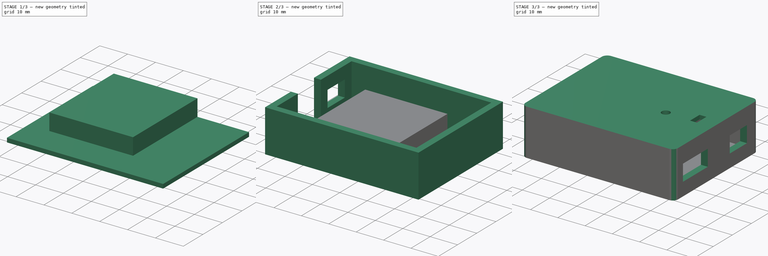
[diagram: build sequence overview — one tinted view per stage of 3, left to right]
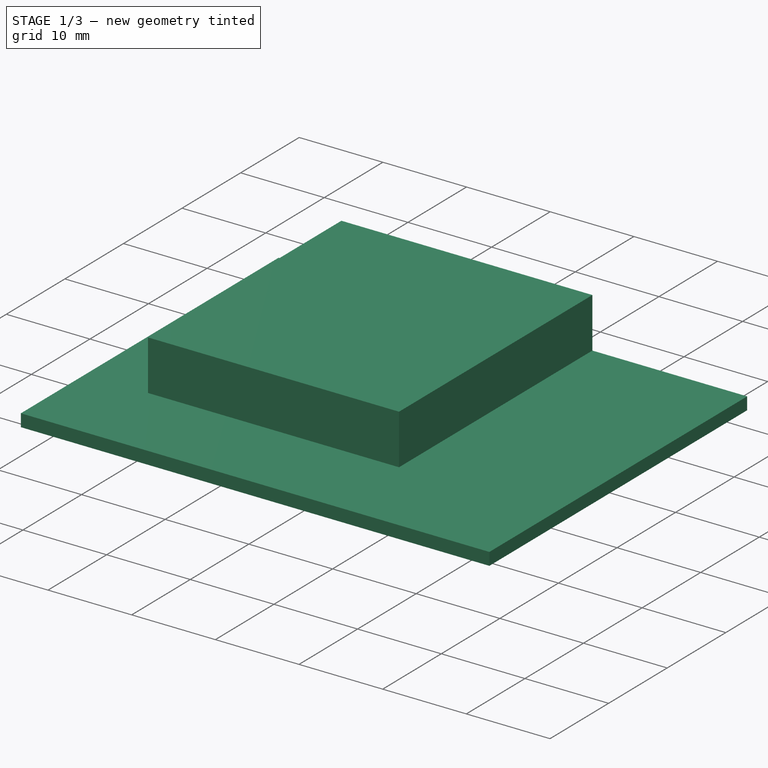
[diagram: stage 1 of 3 — iso view after this stage's code; geometry added in this stage tinted green]
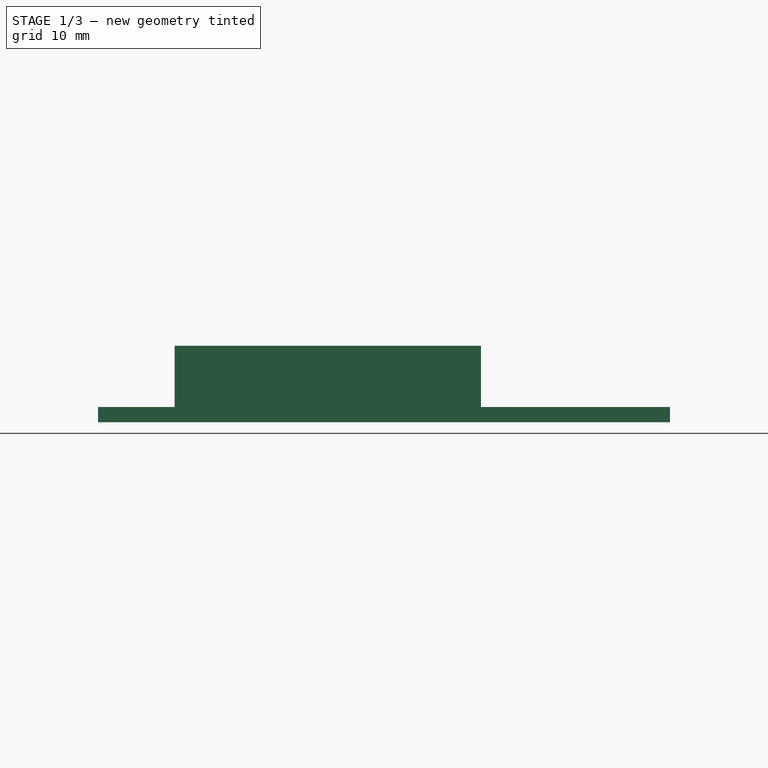
[diagram: stage 1 of 3 — front view after this stage's code; geometry added in this stage tinted green]
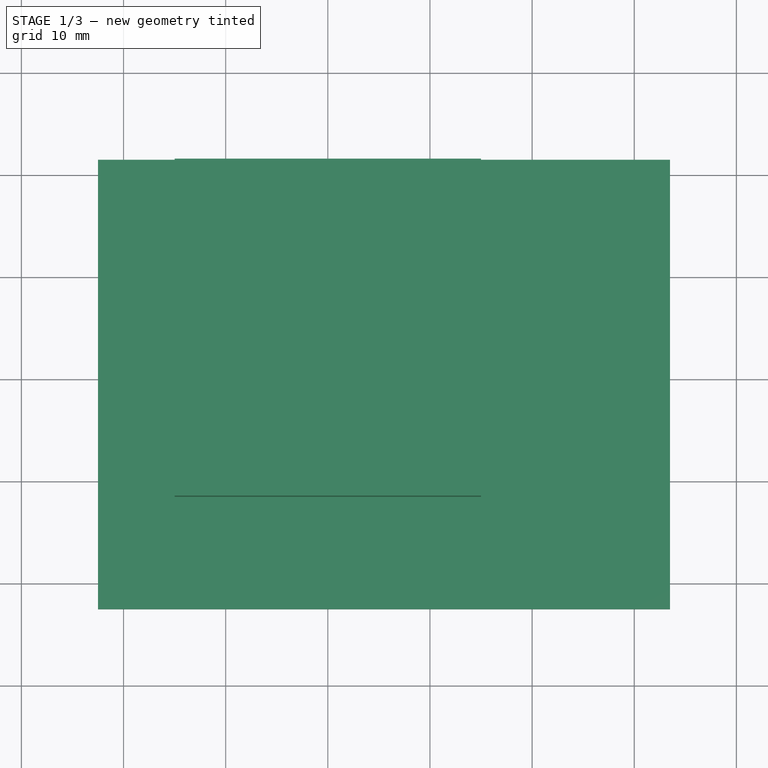
[diagram: stage 1 of 3 — top view after this stage's code; geometry added in this stage tinted green]
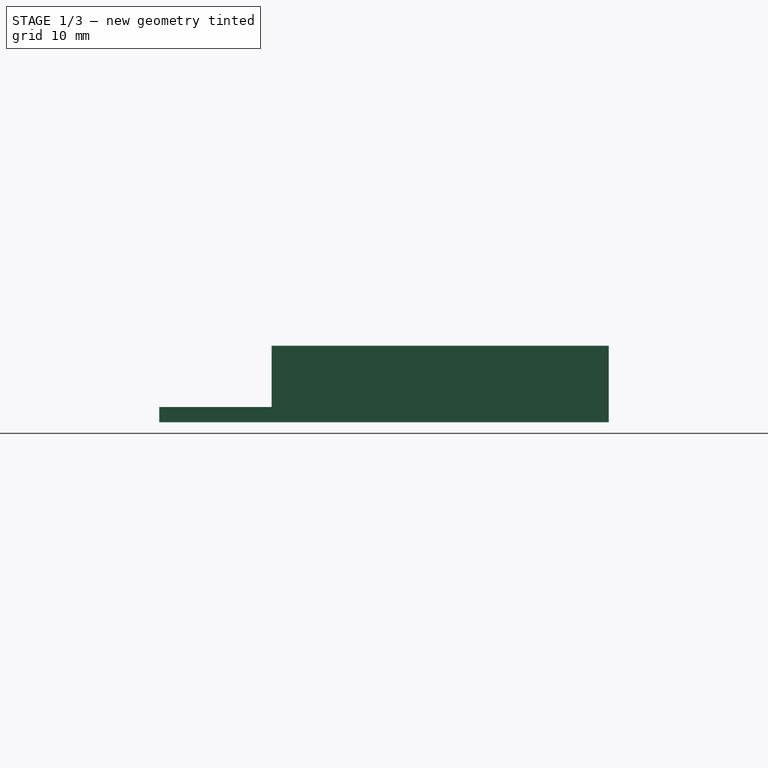
[diagram: stage 1 of 3 — right view after this stage's code; geometry added in this stage tinted green]
FCSTD DOCUMENT  (FreeCAD 1.0R38641 +678 (Git))
Label: AVRISP-MKII_enclosure
License: All rights reserved
LicenseURL: https://en.wikipedia.org/wiki/All_rights_reserved
objects: Sketcher::SketchObject×7, PartDesign::Pad×5, PartDesign::Body×2, PartDesign::Pocket×2, PartDesign::SubShapeBinder×1, PartDesign::Fillet×1
note: 41 computed .brp shape members not serialized (recipe doc carries the construction recipe); baked Part::Feature solids carry a one-line shape summary decoded from their .brp

FEATURE [Sketcher::SketchObject] Sketch
  ArcFitTolerance = 1e-06
  AttachmentSupport = -> [XY_Plane]
  FullyConstrained = true
  MakeInternals = false
  MapMode = 5
  sketch-geometry (27):
    g0: LineSegment StartX=0 StartY=0 StartZ=0 EndX=51 EndY=0 EndZ=0
    g1: LineSegment StartX=51 StartY=0 StartZ=0 EndX=51 EndY=39 EndZ=0
    g2: LineSegment StartX=51 StartY=39 StartZ=0 EndX=0 EndY=39 EndZ=0
    g3: LineSegment StartX=0 StartY=39 StartZ=0 EndX=0 EndY=0 EndZ=0
    g4: LineSegment StartX=0 StartY=0 StartZ=0 EndX=0 EndY=9 EndZ=0
    g5: LineSegment StartX=0 StartY=9 StartZ=0 EndX=-4 EndY=9 EndZ=0
    g6: LineSegment StartX=-4 StartY=9 StartZ=0 EndX=-4 EndY=0 EndZ=0
    g7: LineSegment StartX=-4 StartY=0 StartZ=0 EndX=0 EndY=0 EndZ=0
    g8: LineSegment StartX=0 StartY=11 StartZ=0 EndX=0 EndY=23 EndZ=0
    g9: LineSegment StartX=0 StartY=23 StartZ=0 EndX=-15 EndY=23 EndZ=0
    g10: LineSegment StartX=-15 StartY=23 StartZ=0 EndX=-15 EndY=11 EndZ=0
    g11: LineSegment StartX=-15 StartY=11 StartZ=0 EndX=0 EndY=11 EndZ=0
    g12: LineSegment StartX=0 StartY=35.5 StartZ=0 EndX=-5 EndY=35.5 EndZ=0
    g13: LineSegment StartX=-5 StartY=35.5 StartZ=0 EndX=-5 EndY=26.5 EndZ=0
    g14: LineSegment StartX=-5 StartY=26.5 StartZ=0 EndX=0 EndY=26.5 EndZ=0
    g15: LineSegment StartX=0 StartY=26.5 StartZ=0 EndX=0 EndY=35.5 EndZ=0
    g16: LineSegment StartX=51 StartY=35.5 StartZ=0 EndX=51 EndY=26.5 EndZ=0
    g17: LineSegment StartX=51 StartY=26.5 StartZ=0 EndX=56 EndY=26.5 EndZ=0
    g18: LineSegment StartX=56 StartY=26.5 StartZ=0 EndX=56 EndY=35.5 EndZ=0
    g19: LineSegment StartX=56 StartY=35.5 StartZ=0 EndX=51 EndY=35.5 EndZ=0
    g20: LineSegment StartX=51 StartY=2 StartZ=0 EndX=56 EndY=2 EndZ=0
    g21: LineSegment StartX=56 StartY=2 StartZ=0 EndX=56 EndY=15 EndZ=0
    g22: LineSegment StartX=56 StartY=15 StartZ=0 EndX=51 EndY=15 EndZ=0
    g23: LineSegment StartX=51 StartY=15 StartZ=0 EndX=51 EndY=2 EndZ=0
    g24: Circle CenterX=36 CenterY=18 CenterZ=0 NormalX=0 NormalY=0 NormalZ=1 AngleXU=0 Radius=1.5
    g25: Circle CenterX=49.5 CenterY=20 CenterZ=0 NormalX=0 NormalY=0 NormalZ=1 AngleXU=0 Radius=1.5
    g26: Circle CenterX=46.5 CenterY=20 CenterZ=0 NormalX=0 NormalY=0 NormalZ=1 AngleXU=0 Radius=1.5
  constraints (79):
    c: Coincident(g0,g1)
    c: Coincident(g1,g2)
    c: Coincident(g2,g3)
    c: Coincident(g3,g0)
    c: Horizontal(g0)
    c: Horizontal(g2)
    c: Vertical(g1)
    c: Vertical(g3)
    c: Distance(g1,g3) = 51
    c: Distance(g0,g2) = 39
    c: Coincident(g0,g-1)
    c: Coincident(g4,g5)
    c: Coincident(g5,g6)
    c: Coincident(g6,g7)
    c: Coincident(g7,g4)
    c: Vertical(g4)
    c: Vertical(g6)
    c: Horizontal(g5)
    c: Horizontal(g7)
    c: Distance(g4,g6) = 4
    c: Distance(g5,g7) = 9
    c: Coincident(g4,g0)
    c: Coincident(g8,g9)
    c: Coincident(g9,g10)
    c: Coincident(g10,g11)
    c: Coincident(g11,g8)
    c: Vertical(g8)
    c: Vertical(g10)
    c: Horizontal(g9)
    c: Horizontal(g11)
    c: Distance(g8,g10) = 15
    c: Distance(g9,g11) = 12
    c: PointOnObject(g8,g3)
    c: Distance(g-1,g11) = 11
    c: Coincident(g12,g13)
    c: Coincident(g13,g14)
    c: Coincident(g14,g15)
    c: Coincident(g15,g12)
    c: Horizontal(g12)
    c: Horizontal(g14)
    c: Vertical(g13)
    c: Vertical(g15)
    c: PointOnObject(g12,g3)
    c: Distance(g2,g12) = 3.5
    c: Coincident(g16,g17)
    c: Coincident(g17,g18)
    c: Coincident(g18,g19)
    c: Coincident(g19,g16)
    c: Vertical(g16)
    c: Vertical(g18)
    c: Horizontal(g17)
    c: Horizontal(g19)
    c: Distance(g16,g18) = 5
    c: Distance(g17,g19) = 9
    c: PointOnObject(g16,g1)
    c: Equal(g14,g17)
    c: Equal(g18,g13)
    c: Horizontal(g14,g16)
    c: Coincident(g20,g21)
    c: Coincident(g21,g22)
    c: Coincident(g22,g23)
    c: Coincident(g23,g20)
    c: Horizontal(g20)
    c: Horizontal(g22)
    c: Vertical(g21)
    c: Vertical(g23)
    c: Distance(g21,g23) = 5
    c: Distance(g20,g22) = 13
    c: PointOnObject(g20,g1)
    c: Distance(g-1,g20) = 2
    c: Diameter(g24) = 3
    c: Distance(g24,g0) = 18
    c: Distance(g24,g3) = 36
    c: Diameter(g25) = 3
    c: Distance(g25,g0) = 20
    c: Tangent(g25,g1)
    c: Equal(g26,g25)
    c: Horizontal(g26,g25)
    c: Tangent(g26,g25)
FEATURE [PartDesign::Pad] Pad
  Direction = (0,0,1)
  Length = 1.6
  Length2 = 10
  Profile = -> Sketch
  ReferenceAxis = -> Sketch [N_Axis]
  Refine = true
  Suppressed = false
  Type = 0
FEATURE [PartDesign::Body] Body
  AllowCompound = false
  Group = -> [Sketch,Pad]
  Origin = -> Origin
  Tip = -> Pad
FEATURE [PartDesign::SubShapeBinder] Binder
  BindCopyOnChange = 0
  BindMode = 0
  ClaimChildren = false
  Context = -> Body001 [Binder.]
  Fuse = false
  MakeFace = true
  OffsetFill = false
  OffsetIntersection = false
  OffsetJoinType = 0
  OffsetOpenResult = false
  PartialLoad = false
  Refine = true
  Relative = true
  Support = -> [Body[Pad.Face27]]
  _Version = 2
FEATURE [Sketcher::SketchObject] Sketch001
  ArcFitTolerance = 1e-06
  AttachmentSupport = -> [XY_Plane001]
  ExternalGeometry = -> [Binder]
  FullyConstrained = true
  MakeInternals = false
  MapMode = 5
  sketch-geometry (4):
    g0: LineSegment StartX=-2.5 StartY=-2.5 StartZ=0 EndX=53.5 EndY=-2.5 EndZ=0
    g1: LineSegment StartX=53.5 StartY=-2.5 StartZ=0 EndX=53.5 EndY=41.5 EndZ=0
    g2: LineSegment StartX=53.5 StartY=41.5 StartZ=0 EndX=-2.5 EndY=41.5 EndZ=0
    g3: LineSegment StartX=-2.5 StartY=41.5 StartZ=0 EndX=-2.5 EndY=-2.5 EndZ=0
  constraints (12):
    c: Coincident(g0,g1)
    c: Coincident(g1,g2)
    c: Coincident(g2,g3)
    c: Coincident(g3,g0)
    c: Horizontal(g0)
    c: Horizontal(g2)
    c: Vertical(g1)
    c: Vertical(g3)
    c: Distance(g3,g-2) = 2.5
    c: Distance(g-1,g0) = 2.5
    c: Distance(g-3,g2) = 2.5
    c: Distance(g-3,g1) = 2.5
FEATURE [PartDesign::Pad] Pad001
  Direction = (0,0,1)
  Length = 1.5
  Length2 = 10
  Profile = -> Sketch001
  ReferenceAxis = -> Sketch001 [N_Axis]
  Refine = true
  Suppressed = false
  Type = 0
FEATURE [Sketcher::SketchObject] Sketch002
  ArcFitTolerance = 1e-06
  AttachmentSupport = -> [Pad001]
  ExternalGeometry = -> [Pad001]
  FullyConstrained = true
  MakeInternals = false
  MapMode = 5
  Placement = pos=(0,0,1.5) rot=(0,0,1;0rad)
  sketch-geometry (4):
    g0: LineSegment StartX=5 StartY=41.5 StartZ=0 EndX=5 EndY=8.5 EndZ=0
    g1: LineSegment StartX=5 StartY=8.5 StartZ=0 EndX=35 EndY=8.5 EndZ=0
    g2: LineSegment StartX=35 StartY=8.5 StartZ=0 EndX=35 EndY=41.5 EndZ=0
    g3: LineSegment StartX=35 StartY=41.5 StartZ=0 EndX=5 EndY=41.5 EndZ=0
  constraints (12):
    c: Coincident(g0,g1)
    c: Coincident(g1,g2)
    c: Coincident(g2,g3)
    c: Coincident(g3,g0)
    c: Vertical(g0)
    c: Vertical(g2)
    c: Horizontal(g1)
    c: Horizontal(g3)
    c: Distance(g0,g2) = 30
    c: Distance(g1,g3) = 33
    c: PointOnObject(g0,g-3)
    c: Distance(g-3,g0) = 7.5
FEATURE [PartDesign::Pad] Pad002
  BaseFeature = -> Pad001
  Direction = (0,0,1)
  Length = 6
  Length2 = 10
  Profile = -> Sketch002
  ReferenceAxis = -> Sketch002 [N_Axis]
  Refine = true
  Suppressed = false
  Type = 0
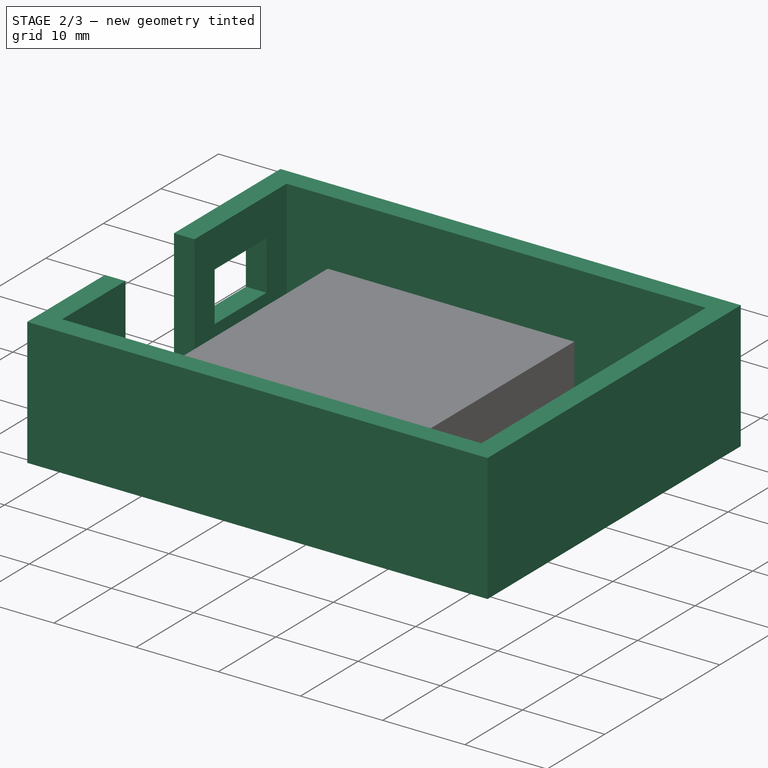
[diagram: stage 2 of 3 — iso view after this stage's code; geometry added in this stage tinted green]
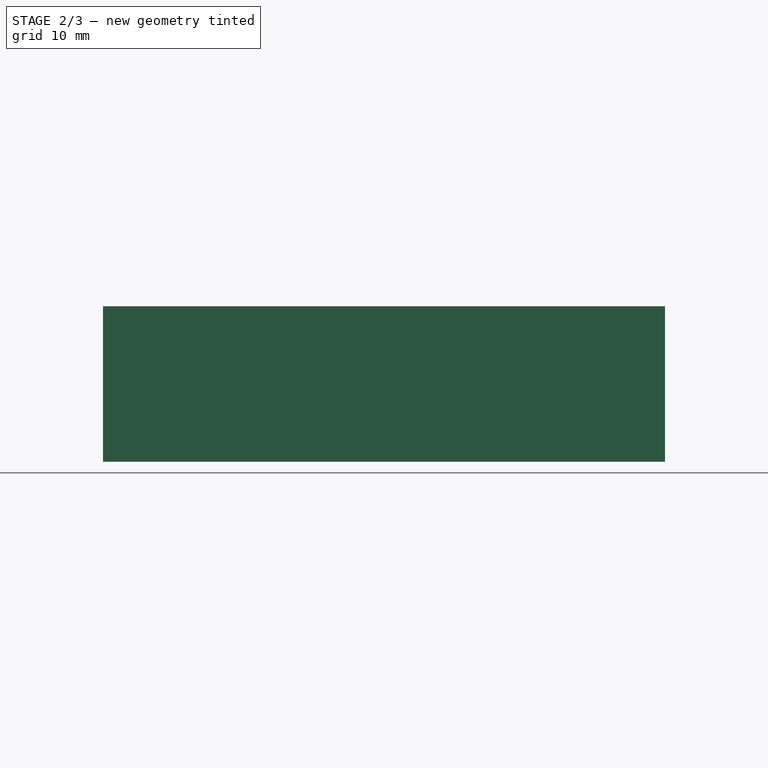
[diagram: stage 2 of 3 — front view after this stage's code; geometry added in this stage tinted green]
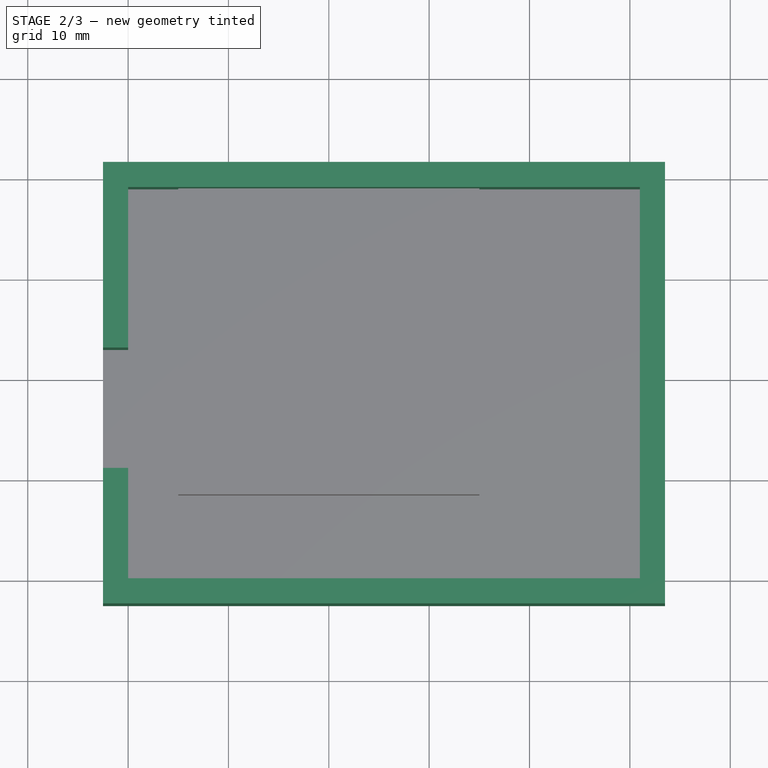
[diagram: stage 2 of 3 — top view after this stage's code; geometry added in this stage tinted green]
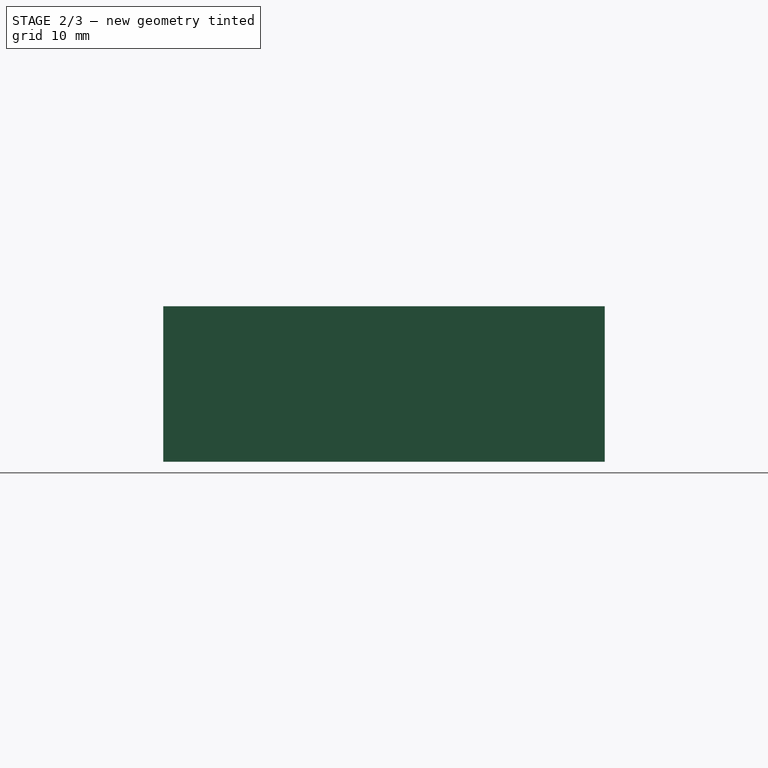
[diagram: stage 2 of 3 — right view after this stage's code; geometry added in this stage tinted green]
FEATURE [Sketcher::SketchObject] Sketch003
  ArcFitTolerance = 1e-06
  AttachmentSupport = -> [Pad002]
  ExternalGeometry = -> [Pad002,Binder]
  FullyConstrained = true
  MakeInternals = false
  MapMode = 5
  Placement = pos=(0,0,1.5) rot=(0,0,1;0rad)
  sketch-geometry (8):
    g0: LineSegment StartX=-2.5 StartY=41.5 StartZ=0 EndX=-2.5 EndY=-2.5 EndZ=0
    g1: LineSegment StartX=-2.5 StartY=-2.5 StartZ=0 EndX=53.5 EndY=-2.5 EndZ=0
    g2: LineSegment StartX=53.5 StartY=-2.5 StartZ=0 EndX=53.5 EndY=41.5 EndZ=0
    g3: LineSegment StartX=53.5 StartY=41.5 StartZ=0 EndX=-2.5 EndY=41.5 EndZ=0
    g4: LineSegment StartX=51 StartY=0 StartZ=0 EndX=51 EndY=39 EndZ=0
    g5: LineSegment StartX=51 StartY=39 StartZ=0 EndX=0 EndY=39 EndZ=0
    g6: LineSegment StartX=0 StartY=39 StartZ=0 EndX=0 EndY=0 EndZ=0
    g7: LineSegment StartX=0 StartY=0 StartZ=0 EndX=51 EndY=0 EndZ=0
  constraints (20):
    c: Coincident(g0,g1)
    c: Coincident(g1,g2)
    c: Coincident(g2,g3)
    c: Coincident(g3,g0)
    c: Vertical(g0)
    c: Vertical(g2)
    c: Horizontal(g1)
    c: Horizontal(g3)
    c: Coincident(g0,g-3)
    c: Coincident(g1,g-4)
    c: Coincident(g4,g5)
    c: Coincident(g5,g6)
    c: Coincident(g6,g7)
    c: Coincident(g7,g4)
    c: Vertical(g4)
    c: Vertical(g6)
    c: Horizontal(g5)
    c: Horizontal(g7)
    c: Coincident(g4,g-6)
    c: Coincident(g-5,g5)
FEATURE [PartDesign::Pad] Pad003
  BaseFeature = -> Pad002
  Direction = (0,0,1)
  Length = 14
  Length2 = 10
  Profile = -> Sketch003
  ReferenceAxis = -> Sketch003 [N_Axis]
  Refine = true
  Suppressed = false
  Type = 0
FEATURE [Sketcher::SketchObject] Sketch004
  ArcFitTolerance = 1e-06
  AttachmentSupport = -> [Pad003]
  ExternalGeometry = -> [Binder,Pad003]
  FullyConstrained = true
  MakeInternals = false
  MapMode = 5
  Placement = pos=(-2.5,0,0) rot=(0.57735,-0.57735,-0.57735;2.0944rad)
  sketch-geometry (12):
    g0: LineSegment StartX=-23 StartY=1.6 StartZ=0 EndX=-11 EndY=1.6 EndZ=0
    g1: LineSegment StartX=-11 StartY=1.6 StartZ=0 EndX=-11 EndY=15.5 EndZ=0
    g2: LineSegment StartX=-11 StartY=15.5 StartZ=0 EndX=-23 EndY=15.5 EndZ=0
    g3: LineSegment StartX=-23 StartY=15.5 StartZ=0 EndX=-23 EndY=1.6 EndZ=0
    g4: LineSegment StartX=-9 StartY=1.6 StartZ=0 EndX=0 EndY=1.6 EndZ=0
    g5: LineSegment StartX=0 StartY=1.6 StartZ=0 EndX=0 EndY=9.6 EndZ=0
    g6: LineSegment StartX=0 StartY=9.6 StartZ=0 EndX=-9 EndY=9.6 EndZ=0
    g7: LineSegment StartX=-9 StartY=9.6 StartZ=0 EndX=-9 EndY=1.6 EndZ=0
    g8: LineSegment StartX=-26.5 StartY=4.85 StartZ=0 EndX=-26.5 EndY=10.85 EndZ=0
    g9: LineSegment StartX=-26.5 StartY=10.85 StartZ=0 EndX=-35.5 EndY=10.85 EndZ=0
    g10: LineSegment StartX=-35.5 StartY=10.85 StartZ=0 EndX=-35.5 EndY=4.85 EndZ=0
    g11: LineSegment StartX=-35.5 StartY=4.85 StartZ=0 EndX=-26.5 EndY=4.85 EndZ=0
  constraints (33):
    c: Coincident(g0,g1)
    c: Coincident(g1,g2)
    c: Coincident(g2,g3)
    c: Coincident(g3,g0)
    c: Horizontal(g2)
    c: Vertical(g1)
    c: Vertical(g3)
    c: Coincident(g0,g-3)
    c: Coincident(g0,g-3)
    c: PointOnObject(g2,g-4)
    c: Coincident(g4,g5)
    c: Coincident(g5,g6)
    c: Coincident(g6,g7)
    c: Coincident(g7,g4)
    c: Horizontal(g4)
    c: Horizontal(g6)
    c: Vertical(g5)
    c: Vertical(g7)
    c: Coincident(g4,g-6)
    c: PointOnObject(g5,g-2)
    c: Distance(g5,g5) = 8
    c: Coincident(g8,g9)
    c: Coincident(g9,g10)
    c: Coincident(g10,g11)
    c: Coincident(g11,g8)
    c: Vertical(g8)
    c: Vertical(g10)
    c: Horizontal(g9)
    c: Horizontal(g11)
    c: Distance(g9,g11) = 6
    c: Vertical(g-5,g10)
    c: Vertical(g-5,g8)
    c: Distance(g-5,g8) = 3.25
FEATURE [PartDesign::Pocket] Pocket
  BaseFeature = -> Pad003
  Direction = (1,0,0)
  Length = 5
  Length2 = 5
  Profile = -> Sketch004
  ReferenceAxis = -> Sketch004 [N_Axis]
  Refine = true
  Suppressed = false
  Type = 2
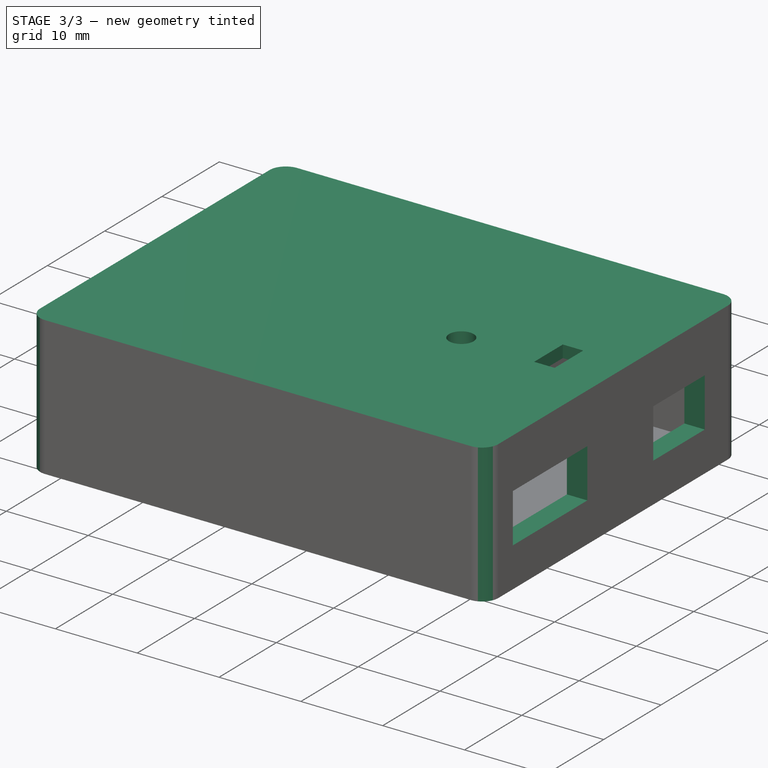
[diagram: stage 3 of 3 — iso view after this stage's code; geometry added in this stage tinted green]
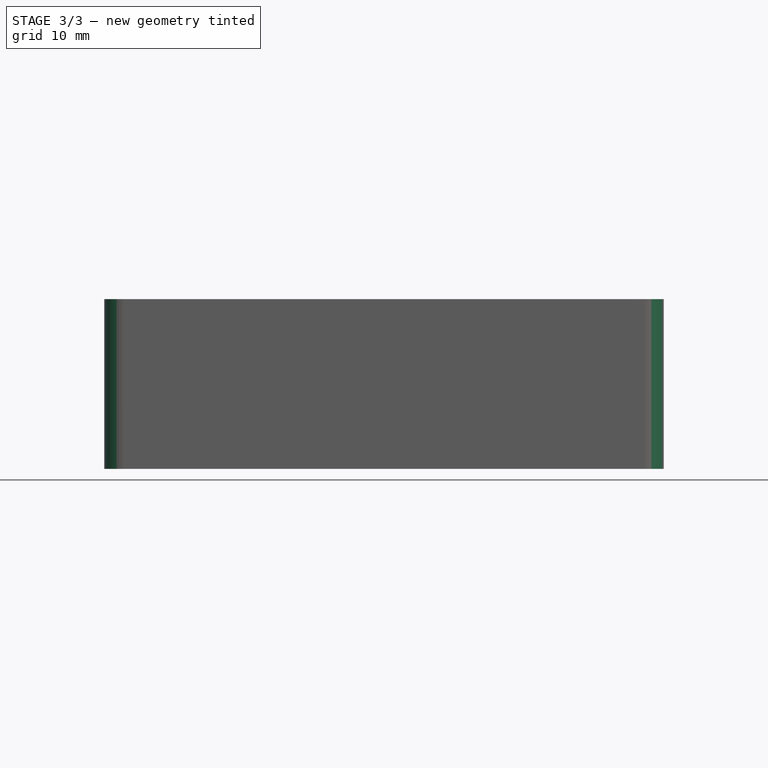
[diagram: stage 3 of 3 — front view after this stage's code; geometry added in this stage tinted green]
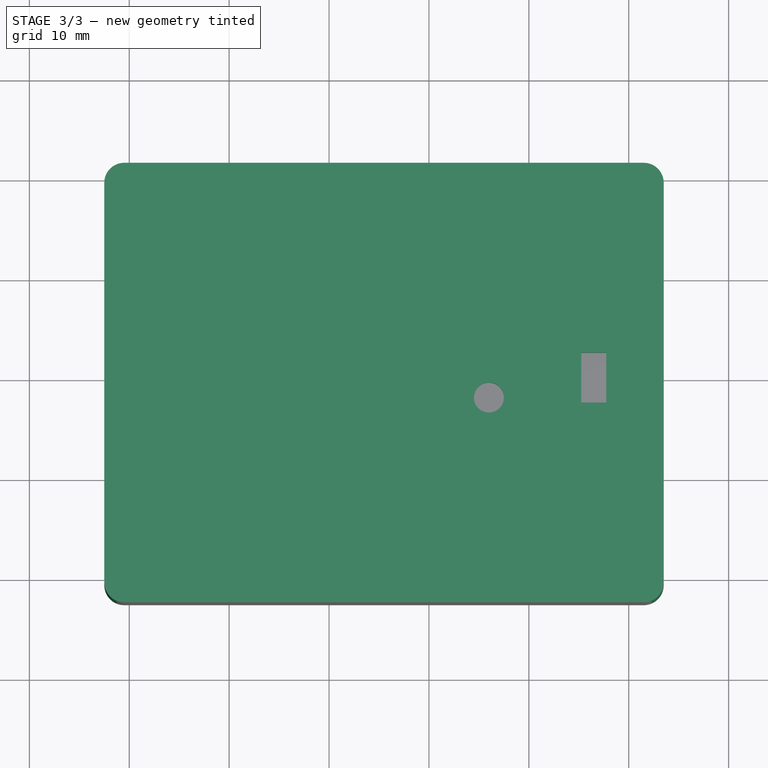
[diagram: stage 3 of 3 — top view after this stage's code; geometry added in this stage tinted green]
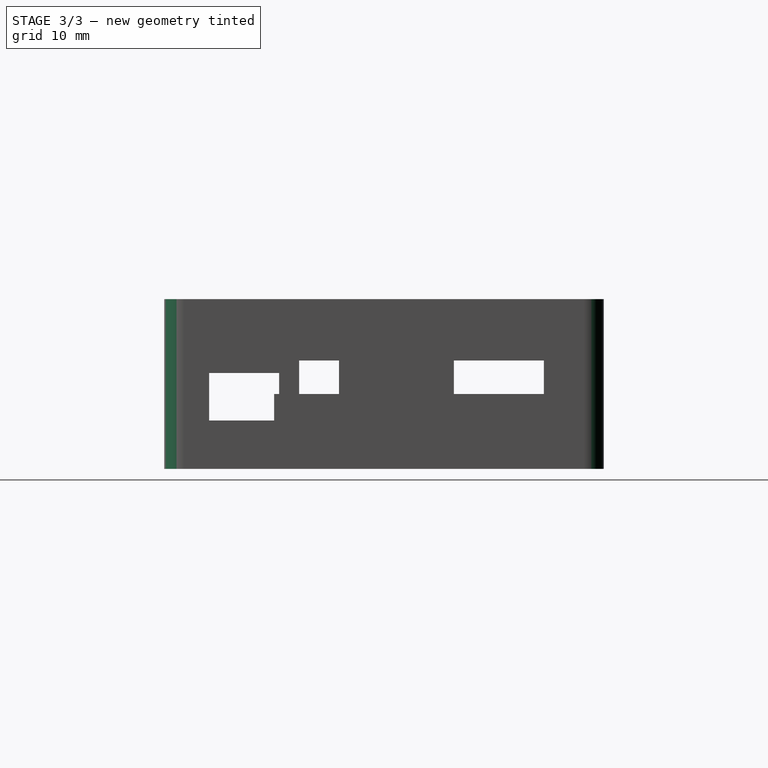
[diagram: stage 3 of 3 — right view after this stage's code; geometry added in this stage tinted green]
FEATURE [Sketcher::SketchObject] Sketch005
  ArcFitTolerance = 1e-06
  AttachmentSupport = -> [Pocket]
  ExternalGeometry = -> [Binder]
  FullyConstrained = true
  MakeInternals = false
  MapMode = 5
  Placement = pos=(53.5,0,-2.03e-14) rot=(0.57735,0.57735,0.57735;2.0944rad)
  sketch-geometry (8):
    g0: LineSegment StartX=2 StartY=4.85 StartZ=0 EndX=15 EndY=4.85 EndZ=0
    g1: LineSegment StartX=15 StartY=4.85 StartZ=0 EndX=15 EndY=10.85 EndZ=0
    g2: LineSegment StartX=15 StartY=10.85 StartZ=0 EndX=2 EndY=10.85 EndZ=0
    g3: LineSegment StartX=2 StartY=10.85 StartZ=0 EndX=2 EndY=4.85 EndZ=0
    g4: LineSegment StartX=26.5 StartY=4.85 StartZ=0 EndX=35.5 EndY=4.85 EndZ=0
    g5: LineSegment StartX=35.5 StartY=4.85 StartZ=0 EndX=35.5 EndY=10.85 EndZ=0
    g6: LineSegment StartX=35.5 StartY=10.85 StartZ=0 EndX=26.5 EndY=10.85 EndZ=0
    g7: LineSegment StartX=26.5 StartY=10.85 StartZ=0 EndX=26.5 EndY=4.85 EndZ=0
  constraints (24):
    c: Coincident(g0,g1)
    c: Coincident(g1,g2)
    c: Coincident(g2,g3)
    c: Coincident(g3,g0)
    c: Horizontal(g0)
    c: Horizontal(g2)
    c: Vertical(g1)
    c: Vertical(g3)
    c: Distance(g0,g2) = 6
    c: Coincident(g4,g5)
    c: Coincident(g5,g6)
    c: Coincident(g6,g7)
    c: Coincident(g7,g4)
    c: Horizontal(g4)
    c: Horizontal(g6)
    c: Vertical(g5)
    c: Vertical(g7)
    c: Equal(g7,g1)
    c: Horizontal(g0,g4)
    c: Vertical(g-3,g0)
    c: Vertical(g-3,g0)
    c: Vertical(g-4,g4)
    c: Vertical(g-4,g4)
    c: Distance(g0,g-3) = 3.25
FEATURE [PartDesign::Pocket] Pocket001
  BaseFeature = -> Pocket
  Direction = (-1,0,0)
  Length = 5
  Length2 = 5
  Profile = -> Sketch005
  ReferenceAxis = -> Sketch005 [N_Axis]
  Refine = true
  Suppressed = false
  Type = 2
FEATURE [Sketcher::SketchObject] Sketch006
  ArcFitTolerance = 1e-06
  AttachmentSupport = -> [Pocket001]
  ExternalGeometry = -> [Pocket001,Binder]
  FullyConstrained = true
  MakeInternals = false
  MapMode = 5
  Placement = pos=(0,0,15.5) rot=(0,0,1;0rad)
  sketch-geometry (10):
    g0: LineSegment StartX=-2.5 StartY=41.5 StartZ=0 EndX=-2.5 EndY=-2.5 EndZ=0
    g1: LineSegment StartX=-2.5 StartY=-2.5 StartZ=0 EndX=53.5 EndY=-2.5 EndZ=0
    g2: LineSegment StartX=53.5 StartY=-2.5 StartZ=0 EndX=53.5 EndY=41.5 EndZ=0
    g3: LineSegment StartX=53.5 StartY=41.5 StartZ=0 EndX=-2.5 EndY=41.5 EndZ=0
    g4: Circle CenterX=36 CenterY=18 CenterZ=0 NormalX=0 NormalY=0 NormalZ=1 AngleXU=0 Radius=1.5
    g5: LineSegment StartX=45.25 StartY=17.5 StartZ=0 EndX=47.75 EndY=17.5 EndZ=0
    g6: LineSegment StartX=47.75 StartY=17.5 StartZ=0 EndX=47.75 EndY=22.5 EndZ=0
    g7: LineSegment StartX=47.75 StartY=22.5 StartZ=0 EndX=45.25 EndY=22.5 EndZ=0
    g8: LineSegment StartX=45.25 StartY=22.5 StartZ=0 EndX=45.25 EndY=17.5 EndZ=0
    g9: GeomPoint [constr] X=46.5 Y=20 Z=0
  constraints (24):
    c: Coincident(g0,g1)
    c: Coincident(g1,g2)
    c: Coincident(g2,g3)
    c: Coincident(g3,g0)
    c: Vertical(g0)
    c: Vertical(g2)
    c: Horizontal(g1)
    c: Horizontal(g3)
    c: Coincident(g0,g-3)
    c: Coincident(g1,g-4)
    c: Coincident(g4,g-6)
    c: Equal(g4,g-6)
    c: Coincident(g5,g6)
    c: Coincident(g6,g7)
    c: Coincident(g7,g8)
    c: Coincident(g8,g5)
    c: Horizontal(g5)
    c: Horizontal(g7)
    c: Vertical(g6)
    c: Vertical(g8)
    c: Symmetric(g7,g5,g9)
    c: Distance(g6,g8) = 2.5
    c: Distance(g5,g7) = 5
    c: Coincident(g9,g-5)
FEATURE [PartDesign::Pad] Pad004
  BaseFeature = -> Pocket001
  Direction = (0,0,1)
  Length = 1.5
  Length2 = 10
  Profile = -> Sketch006
  ReferenceAxis = -> Sketch006 [N_Axis]
  Refine = true
  Suppressed = false
  Type = 0
FEATURE [PartDesign::Fillet] Fillet
  Base = -> Pad004 [Edge7,Edge5,Edge111,Edge110]
  BaseFeature = -> Pad004
  Radius = 2
  Refine = true
  SupportTransform = false
  Suppressed = false
  UseAllEdges = false
FEATURE [PartDesign::Body] Body001
  AllowCompound = false
  Group = -> [Binder,Sketch001,Pad001,Sketch002,Pad002,Sketch003,Pad003,Sketch004,Pocket,Sketch005,Pocket001,Sketch006,Pad004,Fillet]
  Origin = -> Origin001
  Tip = -> Fillet
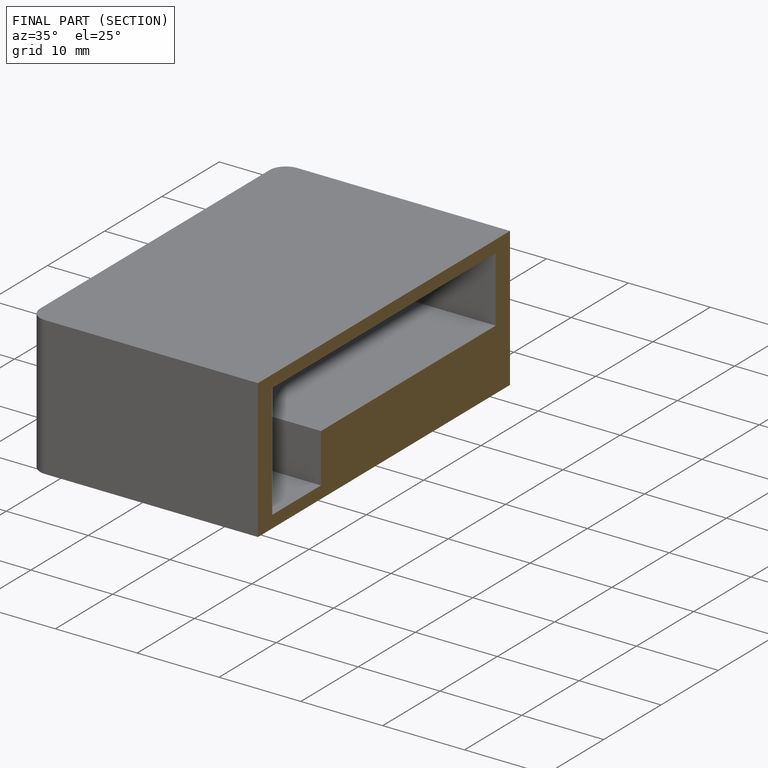
[diagram: finished part — half-section view (interior)]
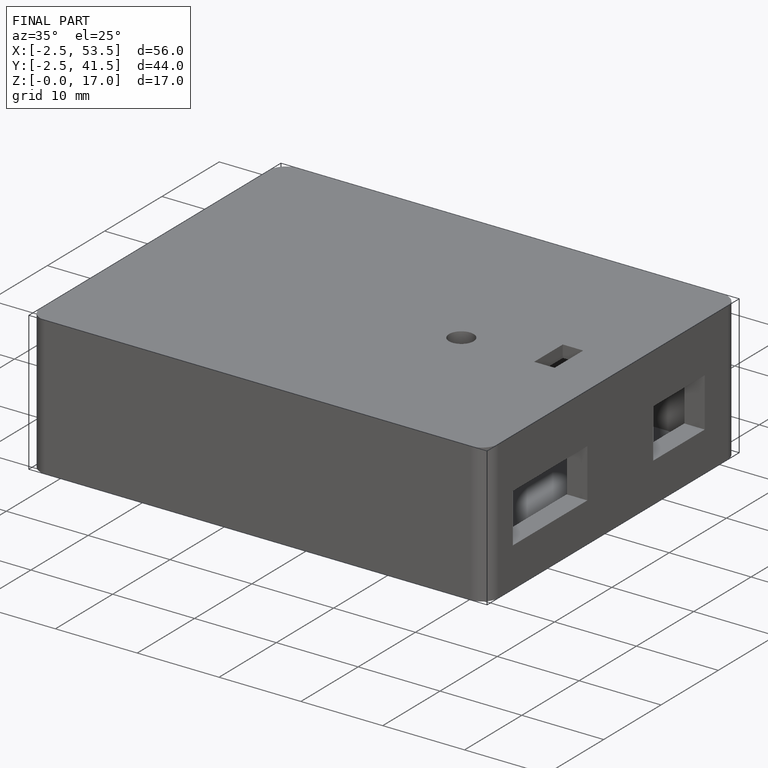
[diagram: finished part — iso view with bounding-box wireframe]
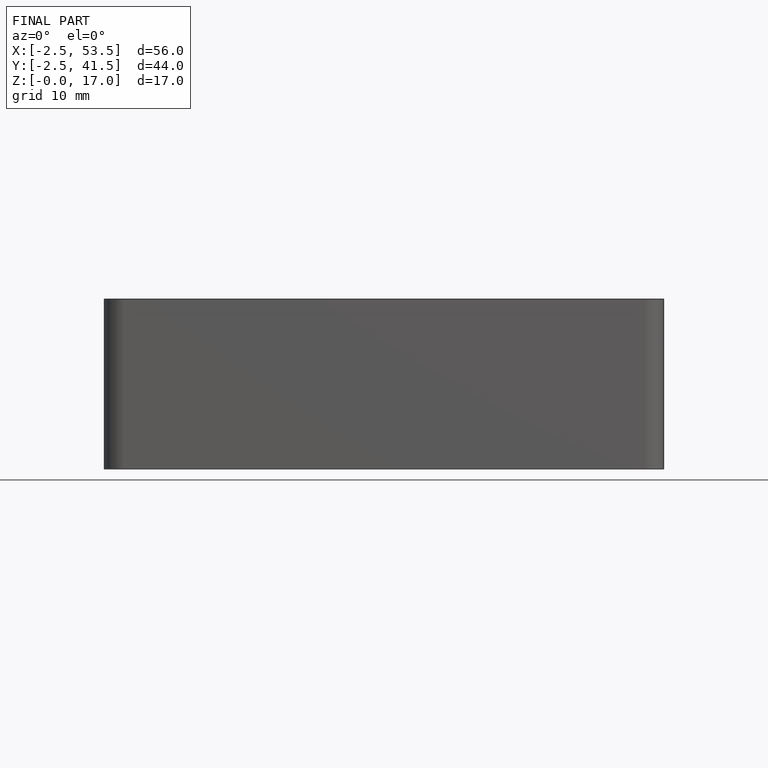
[diagram: finished part — front view with bounding-box wireframe]
